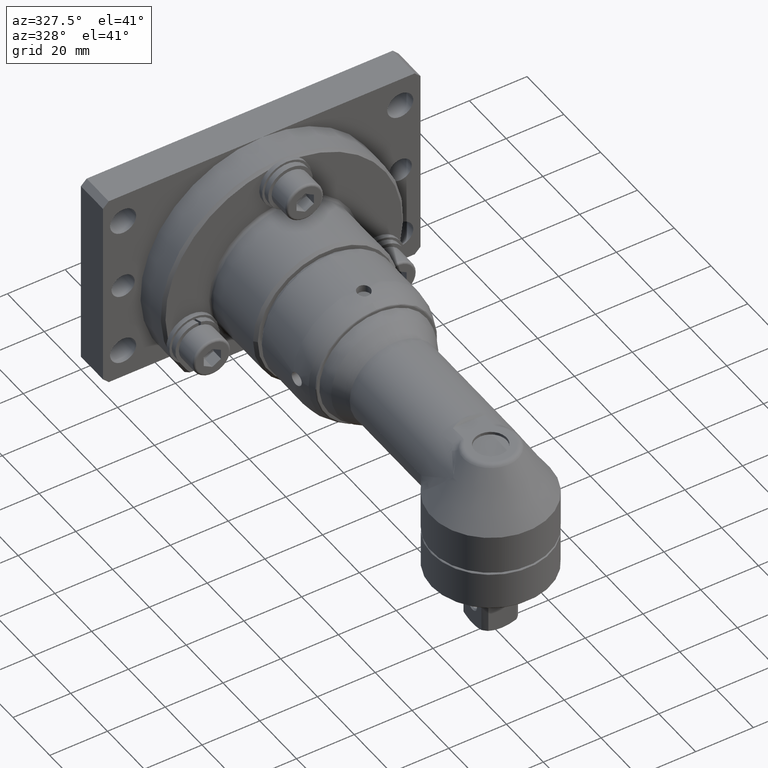
[diagram: clean part render]
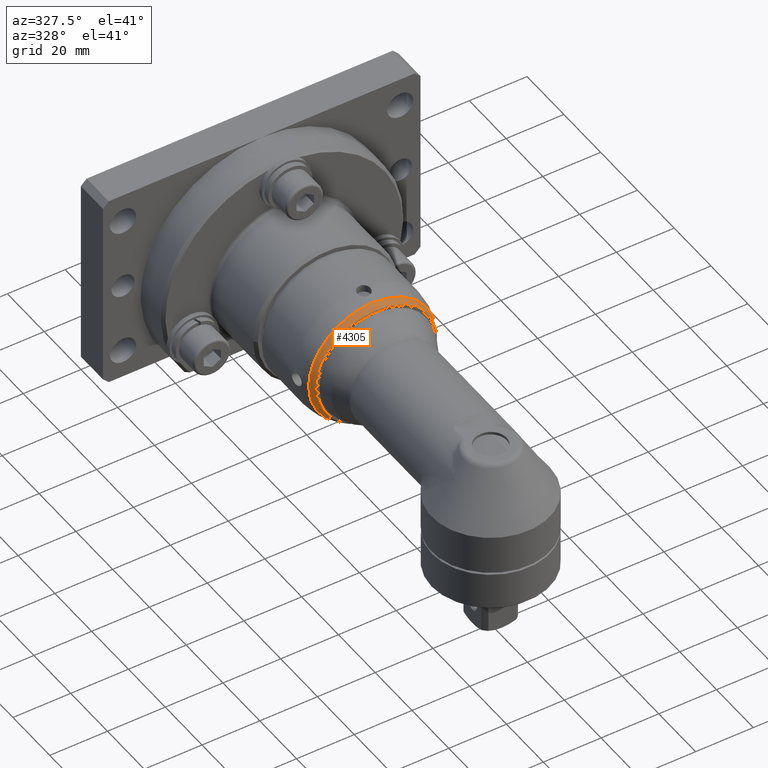
[diagram: same view with one face highlighted and labeled with its STEP entity id]
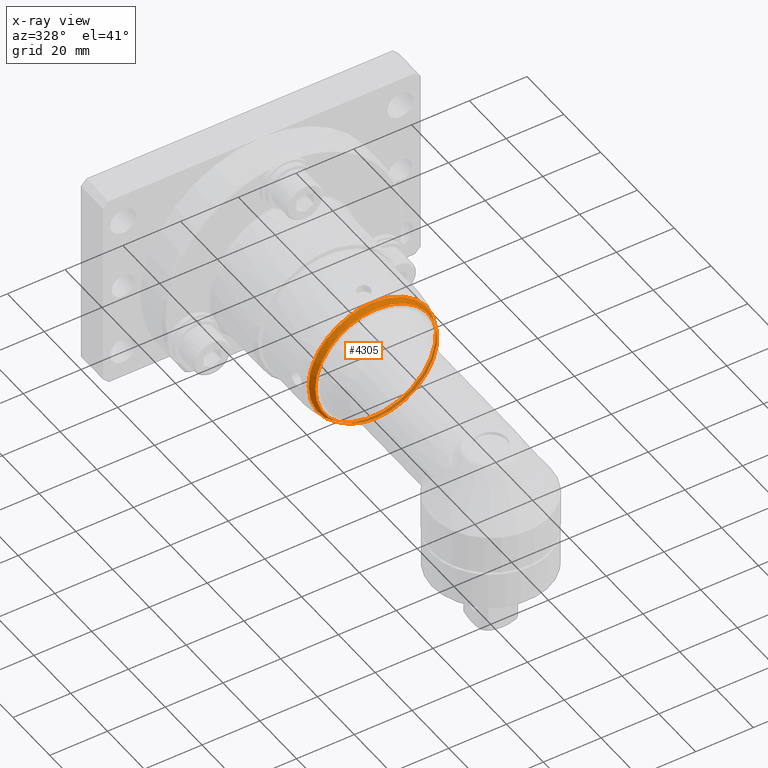
[diagram: x-ray of the same camera — body ghosted, the highlighted face saturated]
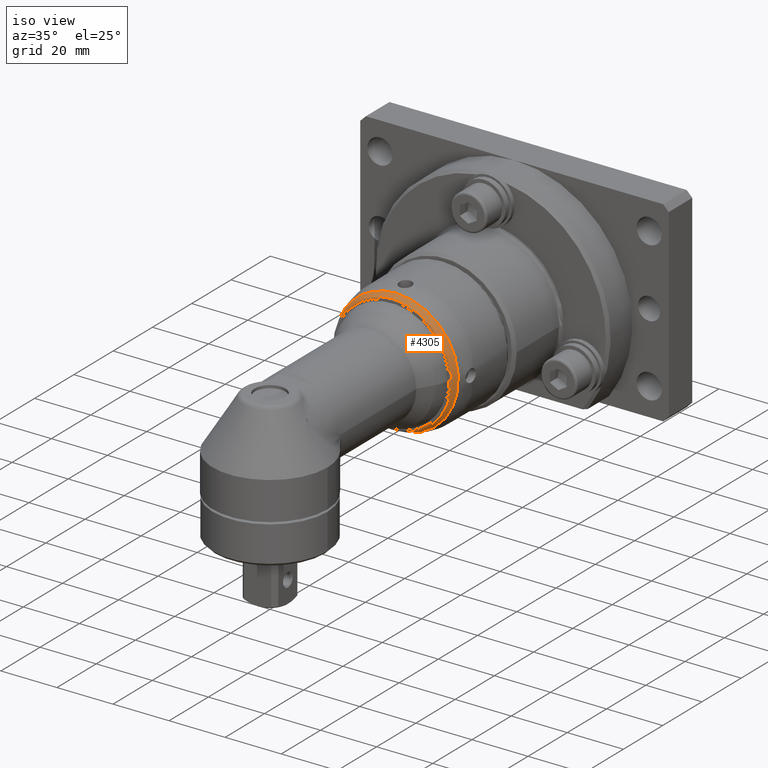
[diagram: same view with one face highlighted and labeled with its STEP entity id]
A machine part, auxiliary view. The second image highlights one B-rep face of the part: STEP entity #4305.
The next image is the same camera in x-ray: the body ghosted, the highlighted face saturated — about 19% of this face is hidden behind the body in this view.
A second angle (iso view) of the same face is appended — the face is thin or edge-on in the first view.
In plain terms, the highlighted conical surface has half-angle 25 deg.
Its self-contained STEP definition (entity closure, byte-faithful):
#157=CONICAL_SURFACE('',#4664,22.25,0.436332312998583);
#214=LINE('',#8139,#421);
#421=VECTOR('',#5481,22.25);
#787=FACE_OUTER_BOUND('',#1047,.T.);
#1047=EDGE_LOOP('',(#3144,#3145,#3146,#3147,#3148,#3149,#3150,#3151));
#1357=CIRCLE('',#4654,22.0946168055497);
#1358=CIRCLE('',#4655,22.0946168055497);
#1359=CIRCLE('',#4656,22.0946168055497);
#1366=CIRCLE('',#4665,21.1346187631146);
#1367=CIRCLE('',#4666,21.1346187631146);
#1368=CIRCLE('',#4667,21.1346187631146);
#1772=VERTEX_POINT('',#8119);
#1773=VERTEX_POINT('',#8123);
#1774=VERTEX_POINT('',#8125);
#1777=VERTEX_POINT('',#8138);
#1778=VERTEX_POINT('',#8140);
#1779=VERTEX_POINT('',#8142);
#2282=EDGE_CURVE('',#1772,#1773,#1357,.T.);
#2283=EDGE_CURVE('',#1773,#1774,#1358,.T.);
#2284=EDGE_CURVE('',#1774,#1772,#1359,.T.);
#2291=EDGE_CURVE('',#1774,#1777,#214,.T.);
#2292=EDGE_CURVE('',#1778,#1777,#1366,.T.);
#2293=EDGE_CURVE('',#1779,#1778,#1367,.T.);
#2294=EDGE_CURVE('',#1777,#1779,#1368,.T.);
#3144=ORIENTED_EDGE('',*,*,#2283,.F.);
#3145=ORIENTED_EDGE('',*,*,#2282,.F.);
#3146=ORIENTED_EDGE('',*,*,#2284,.F.);
#3147=ORIENTED_EDGE('',*,*,#2291,.T.);
#3148=ORIENTED_EDGE('',*,*,#2292,.F.);
#3149=ORIENTED_EDGE('',*,*,#2293,.F.);
#3150=ORIENTED_EDGE('',*,*,#2294,.F.);
#3151=ORIENTED_EDGE('',*,*,#2291,.F.);
#4305=ADVANCED_FACE('',(#787),#157,.T.);
#4654=AXIS2_PLACEMENT_3D('',#8124,#5459,#5460);
#4655=AXIS2_PLACEMENT_3D('',#8126,#5461,#5462);
#4656=AXIS2_PLACEMENT_3D('',#8127,#5463,#5464);
#4664=AXIS2_PLACEMENT_3D('',#8137,#5479,#5480);
#4665=AXIS2_PLACEMENT_3D('',#8141,#5482,#5483);
#4666=AXIS2_PLACEMENT_3D('',#8143,#5484,#5485);
#4667=AXIS2_PLACEMENT_3D('',#8144,#5486,#5487);
#5459=DIRECTION('center_axis',(2.62158422992891E-16,1.,-8.26195203938096E-16));
#5460=DIRECTION('ref_axis',(0.707106781186549,-7.69582229931874E-16,-0.707106781186546));
#5461=DIRECTION('center_axis',(2.62158422992891E-16,1.,-8.26195203938096E-16));
#5462=DIRECTION('ref_axis',(0.707106781186549,-7.69582229931874E-16,-0.707106781186546));
#5463=DIRECTION('center_axis',(2.62158422992891E-16,1.,-8.26195203938096E-16));
#5464=DIRECTION('ref_axis',(0.707106781186549,-7.69582229931874E-16,-0.707106781186546));
#5479=DIRECTION('center_axis',(3.24337863054654E-16,1.,-8.18789480661057E-16));
#5480=DIRECTION('ref_axis',(1.96730036446087E-15,-6.9295354666289E-16,-1.));
#5481=DIRECTION('',(4.85711319282843E-16,-0.90630778703665,-0.4226182617407));
#5482=DIRECTION('center_axis',(-3.17771485887711E-16,-1.,8.04581958500908E-16));
#5483=DIRECTION('ref_axis',(-1.93668419448219E-15,8.04581958500908E-16,
1.));
#5484=DIRECTION('center_axis',(-3.17771485887711E-16,-1.,8.04581958500908E-16));
#5485=DIRECTION('ref_axis',(-1.93668419448219E-15,8.04581958500908E-16,
1.));
#5486=DIRECTION('center_axis',(-3.17771485887711E-16,-1.,8.04581958500908E-16));
#5487=DIRECTION('ref_axis',(-1.93668419448219E-15,8.04581958500908E-16,
1.));
#8119=CARTESIAN_POINT('',(-22.0946168055498,64.3474133148073,-1.59700481643671E-13));
#8123=CARTESIAN_POINT('',(-15.6232533709225,64.3474133148073,15.6232533709223));
#8124=CARTESIAN_POINT('Origin',(-9.53994770289721E-15,64.3474133148073,
-1.17533932152846E-13));
#8125=CARTESIAN_POINT('',(-5.03008852221481E-14,64.3474133148073,22.0946168055496));
#8126=CARTESIAN_POINT('Origin',(-9.53994770289721E-15,64.3474133148073,
-1.17533932152846E-13));
#8127=CARTESIAN_POINT('Origin',(-9.53994770289721E-15,64.3474133148073,
-1.17533932152846E-13));
#8137=CARTESIAN_POINT('Origin',(-9.43187173124793E-15,64.6806336506368,
-1.19212381430139E-13));
#8138=CARTESIAN_POINT('',(-4.91975682150231E-14,62.2886908691295,21.1346187631145));
#8139=CARTESIAN_POINT('',(-5.04794657123994E-14,64.6806336506368,22.2499999999999));
#8140=CARTESIAN_POINT('',(3.5252840336783E-14,62.2886908691294,-21.1346187631147));
#8141=CARTESIAN_POINT('Origin',(-8.26648610009242E-15,62.2886908691295,
-1.17217556157144E-13));
#8142=CARTESIAN_POINT('',(-21.1346187631146,62.2886908691295,-1.5624378271577E-13));
#8143=CARTESIAN_POINT('Origin',(-8.26648610009242E-15,62.2886908691295,
-1.17217556157144E-13));
#8144=CARTESIAN_POINT('Origin',(-8.26648610009242E-15,62.2886908691295,
-1.17217556157144E-13));